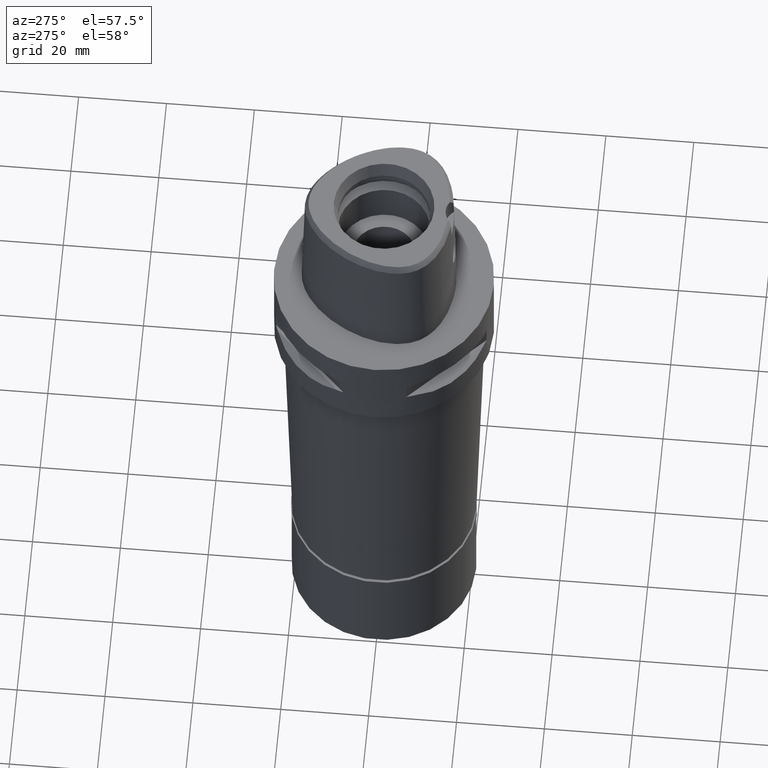
[diagram: clean part render]
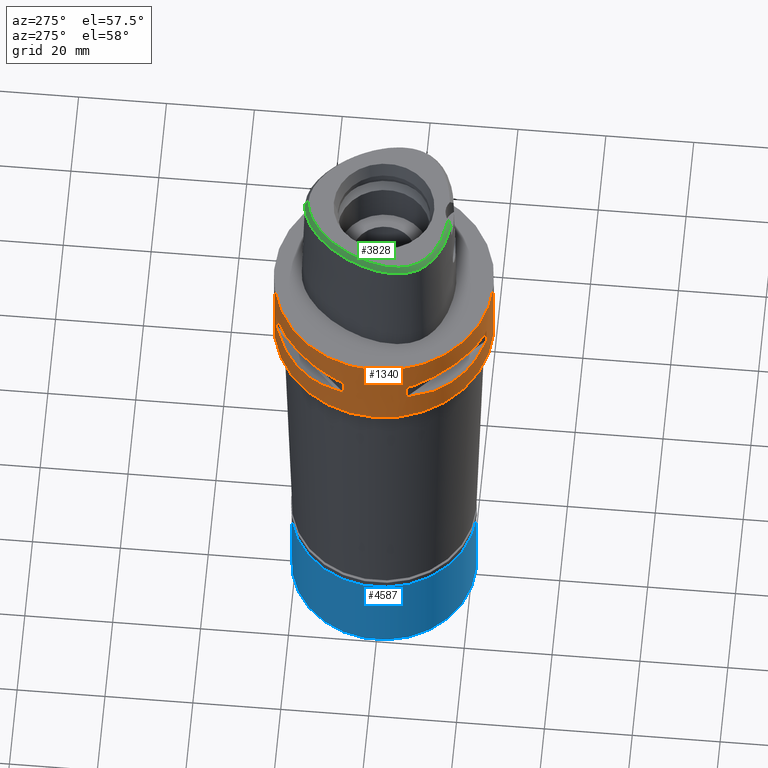
[diagram: same view with three faces highlighted in distinct colors, each labeled with its STEP entity id]
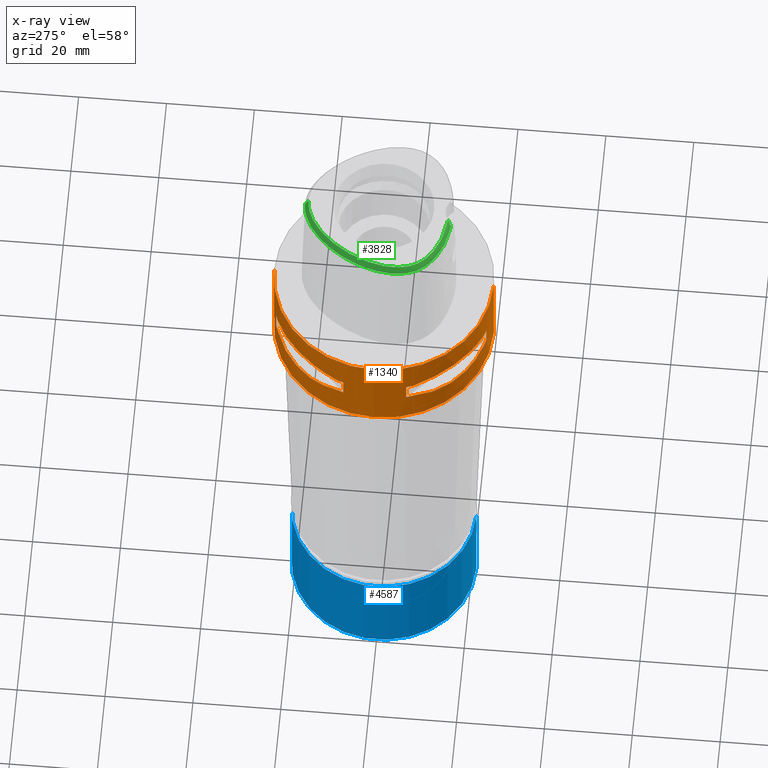
[diagram: x-ray of the same camera — body ghosted, the three highlighted faces saturated]
A machine part, auxiliary view with three faces highlighted in distinct colors.
The next image is the same camera in x-ray (body ghosted, the three faces saturated) — at least one of them is partly hidden behind the body in this view.
Their STEP definitions:

[orange] entity #1340 — the highlighted cylindrical surface (partial cylindrical patch) has radius 25 mm, axis along (0, 0, -1).
#78 = CARTESIAN_POINT ( 'NONE',  ( -10.78455809744490068, 22.58788056562654489, -12.56798337782910480 ) ) ;
#83 = CARTESIAN_POINT ( 'NONE',  ( -14.22535762327708397, -20.56020460723788901, -13.14488865845220289 ) ) ;
#107 = CARTESIAN_POINT ( 'NONE',  ( -8.646484890751999330, -23.45715880140000209, -12.05000000000000071 ) ) ;
#110 = VECTOR ( 'NONE', #177, 1000.000000000000000 ) ;
#161 = CARTESIAN_POINT ( 'NONE',  ( 0.0000000000000000000, 1.293533181598999990E-14, -12.05000000000000071 ) ) ;
#177 = DIRECTION ( 'NONE',  ( 0.0000000000000000000, 0.0000000000000000000, -1.000000000000000000 ) ) ;
#203 = EDGE_LOOP ( 'NONE', ( #4661, #1486, #4260, #4144 ) ) ;
#211 = ORIENTED_EDGE ( 'NONE', *, *, #624, .T. ) ;
#254 = VERTEX_POINT ( 'NONE', #3450 ) ;
#269 = VECTOR ( 'NONE', #312, 1000.000000000000000 ) ;
#312 = DIRECTION ( 'NONE',  ( 0.0000000000000000000, 0.0000000000000000000, 1.000000000000000000 ) ) ;
#317 = CARTESIAN_POINT ( 'NONE',  ( -15.02693924547097204, 20.06077645875068072, -6.733132781305681824 ) ) ;
#340 = CIRCLE ( 'NONE', #3094, 25.00000000000001066 ) ;
#343 = EDGE_CURVE ( 'NONE', #3023, #3370, #4446, .T. ) ;
#352 = CARTESIAN_POINT ( 'NONE',  ( 0.0000000000000000000, 1.293533181598999990E-14, -7.950000000000000178 ) ) ;
#413 = DIRECTION ( 'NONE',  ( 0.0000000000000000000, 0.0000000000000000000, -1.000000000000000000 ) ) ;
#421 = CARTESIAN_POINT ( 'NONE',  ( -20.92801700160071476, 13.67544437571354088, -13.07054629644098043 ) ) ;
#428 = CARTESIAN_POINT ( 'NONE',  ( -20.02826730454556170, -15.06560254766883666, -13.27075471794798744 ) ) ;
#452 = CARTESIAN_POINT ( 'NONE',  ( -16.07509500017260251, -19.18226349640280048, -13.33749867751863327 ) ) ;
#478 = CARTESIAN_POINT ( 'NONE',  ( -23.95277699797999915, 7.159921374230999724, -12.05000000000000071 ) ) ;
#486 = CARTESIAN_POINT ( 'NONE',  ( 0.0000000000000000000, 1.293533181598999990E-14, -12.05000000000000071 ) ) ;
#501 = CIRCLE ( 'NONE', #2624, 25.00000000000000000 ) ;
#608 = CIRCLE ( 'NONE', #3113, 24.99999999999999645 ) ;
#624 = EDGE_CURVE ( 'NONE', #1397, #4736, #1175, .T. ) ;
#629 = VERTEX_POINT ( 'NONE', #2608 ) ;
#639 = CARTESIAN_POINT ( 'NONE',  ( -22.00754773658078634, -11.99631184311072651, -7.175632472892016445 ) ) ;
#666 = CARTESIAN_POINT ( 'NONE',  ( -20.06077645874710669, -15.02693924547572557, -6.733132781305682713 ) ) ;
#692 = CARTESIAN_POINT ( 'NONE',  ( -16.42437865151180887, 18.93096040781558642, -6.622505547253058289 ) ) ;
#700 = CIRCLE ( 'NONE', #713, 24.99999999999999645 ) ;
#713 = AXIS2_PLACEMENT_3D ( 'NONE', #1029, #4030, #4288 ) ;
#726 = DIRECTION ( 'NONE',  ( 0.0000000000000000000, 0.0000000000000000000, 1.000000000000000000 ) ) ;
#772 = CARTESIAN_POINT ( 'NONE',  ( -7.159921374230999724, -23.95277699797999915, -12.05000000000000071 ) ) ;
#787 = CARTESIAN_POINT ( 'NONE',  ( -20.56020460721916265, 14.22535762329778564, -13.14488865845300047 ) ) ;
#794 = CARTESIAN_POINT ( 'NONE',  ( -22.58788056562029922, -10.78455809745187111, -12.56798337782941744 ) ) ;
#806 = AXIS2_PLACEMENT_3D ( 'NONE', #352, #726, #2237 ) ;
#827 = EDGE_CURVE ( 'NONE', #4316, #3151, #501, .T. ) ;
#838 = B_SPLINE_CURVE_WITH_KNOTS ( 'NONE', 3,
 ( #4594, #3435, #794, #2668, #3899, #3092, #4542, #1224, #1172, #3804, #428, #1580, #2327, #452, #3461, #83, #2717, #4209, #843, #2352, #3852, #1985, #3483, #107 ),
 .UNSPECIFIED., .F., .F.,
 ( 4, 1, 1, 1, 1, 1, 2, 2, 2, 1, 1, 1, 1, 1, 2, 2, 4 ),
 ( 0.0000000000000000000, 0.1249999999999980294, 0.1874999999999968636, 0.2187499999999962530, 0.2343749999999959754, 0.2421874999999957812, 0.2460937499999955869, 0.2499999999999953926, 0.5000000000000005551, 0.6250000000000031086, 0.6875000000000044409, 0.7187500000000051070, 0.7343750000000054401, 0.7421875000000055511, 0.7460937500000055511, 0.7500000000000055511, 1.000000000000000000 ),
 .UNSPECIFIED. ) ;
#843 = CARTESIAN_POINT ( 'NONE',  ( -13.67544437571023153, -20.92801700160370970, -13.07054629644085786 ) ) ;
#917 = VERTEX_POINT ( 'NONE', #3227 ) ;
#941 = EDGE_CURVE ( 'NONE', #254, #3370, #3717, .T. ) ;
#951 = CARTESIAN_POINT ( 'NONE',  ( -11.99636231264437747, -22.00752022556847720, -7.175618606703325852 ) ) ;
#983 = CARTESIAN_POINT ( 'NONE',  ( 0.0000000000000000000, 1.293533181598999990E-14, -7.950000000000000178 ) ) ;
#1003 = CARTESIAN_POINT ( 'NONE',  ( -15.02698525050127465, -20.06074199764947963, -6.733118915116992120 ) ) ;
#1029 = CARTESIAN_POINT ( 'NONE',  ( 0.0000000000000000000, 1.293533181598999990E-14, -12.05000000000000071 ) ) ;
#1040 = VECTOR ( 'NONE', #413, 1000.000000000000000 ) ;
#1057 = FACE_BOUND ( 'NONE', #4029, .T. ) ;
#1075 = ORIENTED_EDGE ( 'NONE', *, *, #2605, .T. ) ;
#1127 = VERTEX_POINT ( 'NONE', #3324 ) ;
#1134 = CARTESIAN_POINT ( 'NONE',  ( 0.0000000000000000000, 1.293533181598999990E-14, 0.0000000000000000000 ) ) ;
#1154 = CARTESIAN_POINT ( 'NONE',  ( -23.45715880140000209, 8.646484890751999330, -7.949999999998999201 ) ) ;
#1172 = CARTESIAN_POINT ( 'NONE',  ( -21.01958685664054372, -13.53433973752400377, -13.05032380590162511 ) ) ;
#1175 = B_SPLINE_CURVE_WITH_KNOTS ( 'NONE', 3,
 ( #1564, #2651, #4429, #317, #692, #2207, #1840, #3327, #4500, #1154 ),
 .UNSPECIFIED., .F., .F.,
 ( 4, 2, 2, 2, 4 ),
 ( 0.0000000000000000000, 0.2500000000000000000, 0.5000000000000000000, 0.7500000000000000000, 1.000000000000000000 ),
 .UNSPECIFIED. ) ;
#1192 = CARTESIAN_POINT ( 'NONE',  ( -22.81626994450270374, 10.38516041961251979, -12.49816953212508963 ) ) ;
#1220 = AXIS2_PLACEMENT_3D ( 'NONE', #486, #1995, #1259 ) ;
#1224 = CARTESIAN_POINT ( 'NONE',  ( -21.05082155772163333, -13.48572973711064193, -13.04323036965292637 ) ) ;
#1247 = DIRECTION ( 'NONE',  ( 0.0000000000000000000, 0.0000000000000000000, 1.000000000000000000 ) ) ;
#1259 = DIRECTION ( 'NONE',  ( -0.9382863520558295534, -0.3458593956303108730, 0.0000000000000000000 ) ) ;
#1279 = DIRECTION ( 'NONE',  ( 0.0000000000000000000, 0.0000000000000000000, -1.000000000000000000 ) ) ;
#1340 = ADVANCED_FACE ( 'NONE', ( #1891, #1057, #2219 ), #1433, .T. ) ;
#1354 = ORIENTED_EDGE ( 'NONE', *, *, #343, .T. ) ;
#1397 = VERTEX_POINT ( 'NONE', #3319 ) ;
#1427 = VERTEX_POINT ( 'NONE', #3292 ) ;
#1433 = CYLINDRICAL_SURFACE ( 'NONE', #1916, 25.00000000000000000 ) ;
#1441 = EDGE_LOOP ( 'NONE', ( #3624, #3167, #2147, #1980, #1354, #3394, #3219, #4205 ) ) ;
#1461 = VERTEX_POINT ( 'NONE', #2168 ) ;
#1482 = B_SPLINE_CURVE_WITH_KNOTS ( 'NONE', 3,
 ( #3247, #4034, #639, #666, #2173, #4746, #1003, #951, #2455, #1733 ),
 .UNSPECIFIED., .F., .F.,
 ( 4, 2, 2, 2, 4 ),
 ( 0.0000000000000000000, 0.2499999999999998335, 0.4999999999999996669, 0.7499999999999997780, 1.000000000000000000 ),
 .UNSPECIFIED. ) ;
#1486 = ORIENTED_EDGE ( 'NONE', *, *, #3958, .F. ) ;
#1505 = CARTESIAN_POINT ( 'NONE',  ( -12.20403021317230241, 21.82791133048917587, -12.83722430138601212 ) ) ;
#1539 = CIRCLE ( 'NONE', #806, 25.00000000000001066 ) ;
#1540 = B_SPLINE_CURVE_WITH_KNOTS ( 'NONE', 3,
 ( #1575, #3430, #78, #1505, #4134, #4490, #2281, #1909, #3796, #1553, #3063, #3036, #4536, #2665, #4156, #787, #1954, #2687, #421, #1601, #4180, #4562, #1192, #4229 ),
 .UNSPECIFIED., .F., .F.,
 ( 4, 1, 1, 1, 1, 1, 2, 2, 2, 1, 1, 1, 1, 1, 2, 2, 4 ),
 ( 0.0000000000000000000, 0.1249999999999998612, 0.1874999999999998890, 0.2187499999999998057, 0.2343749999999998057, 0.2421875000000000000, 0.2460937500000001110, 0.2500000000000002220, 0.5000000000000009992, 0.6250000000000014433, 0.6875000000000015543, 0.7187500000000016653, 0.7343750000000015543, 0.7421875000000013323, 0.7460937500000013323, 0.7500000000000012212, 1.000000000000000000 ),
 .UNSPECIFIED. ) ;
#1553 = CARTESIAN_POINT ( 'NONE',  ( -13.55971422200900811, 21.00321793043610441, -13.05400030967432023 ) ) ;
#1557 = DIRECTION ( 'NONE',  ( 0.0000000000000000000, 0.0000000000000000000, 1.000000000000000000 ) ) ;
#1561 = CARTESIAN_POINT ( 'NONE',  ( -8.646484890756999775, 23.45715880140000209, -12.05000000000000071 ) ) ;
#1564 = CARTESIAN_POINT ( 'NONE',  ( -8.646484890751999330, 23.45715880140000209, -7.949999999998999201 ) ) ;
#1575 = CARTESIAN_POINT ( 'NONE',  ( -8.646484890756999775, 23.45715880140000209, -12.05000000000000071 ) ) ;
#1580 = CARTESIAN_POINT ( 'NONE',  ( -18.92421359266165126, -16.43106916201666934, -13.37747608848409264 ) ) ;
#1595 = AXIS2_PLACEMENT_3D ( 'NONE', #1134, #1279, #4244 ) ;
#1601 = CARTESIAN_POINT ( 'NONE',  ( -20.95817024473769052, 13.62920640916783910, -13.06397973560678594 ) ) ;
#1628 = LINE ( 'NONE', #2899, #110 ) ;
#1631 = CARTESIAN_POINT ( 'NONE',  ( -8.646484890751999330, -23.45715880140000209, -7.949999999998999201 ) ) ;
#1681 = CARTESIAN_POINT ( 'NONE',  ( 0.0000000000000000000, 1.293533181598999990E-14, -7.950000000000000178 ) ) ;
#1685 = EDGE_CURVE ( 'NONE', #3042, #917, #4043, .T. ) ;
#1686 = EDGE_CURVE ( 'NONE', #4736, #629, #340, .T. ) ;
#1733 = CARTESIAN_POINT ( 'NONE',  ( -8.646484890751999330, -23.45715880140000209, -7.949999999998999201 ) ) ;
#1755 = CIRCLE ( 'NONE', #1595, 25.00000000000000000 ) ;
#1759 = DIRECTION ( 'NONE',  ( 0.0000000000000000000, 0.0000000000000000000, 1.000000000000000000 ) ) ;
#1771 = VERTEX_POINT ( 'NONE', #3756 ) ;
#1792 = CARTESIAN_POINT ( 'NONE',  ( 0.0000000000000000000, -25.00000000000000000, -20.00000000000000000 ) ) ;
#1840 = CARTESIAN_POINT ( 'NONE',  ( -20.06074199764948673, 15.02698525050129064, -6.733118915116992120 ) ) ;
#1890 = EDGE_CURVE ( 'NONE', #4723, #4393, #1539, .T. ) ;
#1891 = FACE_OUTER_BOUND ( 'NONE', #203, .T. ) ;
#1909 = CARTESIAN_POINT ( 'NONE',  ( -13.48572973711087464, 21.05082155772280572, -13.04323036965348237 ) ) ;
#1916 = AXIS2_PLACEMENT_3D ( 'NONE', #4867, #3734, #3014 ) ;
#1954 = CARTESIAN_POINT ( 'NONE',  ( -20.77616787492826944, 13.90573822668830140, -13.10257122103331184 ) ) ;
#1971 = EDGE_CURVE ( 'NONE', #3042, #3325, #1540, .T. ) ;
#1980 = ORIENTED_EDGE ( 'NONE', *, *, #2682, .F. ) ;
#1985 = CARTESIAN_POINT ( 'NONE',  ( -12.03062603421342125, -21.99328990740118428, -12.83394786307044555 ) ) ;
#1995 = DIRECTION ( 'NONE',  ( 0.0000000000000000000, 0.0000000000000000000, -1.000000000000000000 ) ) ;
#2010 = DIRECTION ( 'NONE',  ( -0.2863968549694120291, 0.9581110799190402094, 0.0000000000000000000 ) ) ;
#2069 = CARTESIAN_POINT ( 'NONE',  ( 0.0000000000000000000, 25.00000000000000000, -20.00000000000000000 ) ) ;
#2145 = CARTESIAN_POINT ( 'NONE',  ( -23.95277699797999915, 7.159921374235000080, -12.05000000000000071 ) ) ;
#2146 = DIRECTION ( 'NONE',  ( 0.0000000000000000000, 1.000000000000000000, 0.0000000000000000000 ) ) ;
#2147 = ORIENTED_EDGE ( 'NONE', *, *, #2819, .T. ) ;
#2168 = CARTESIAN_POINT ( 'NONE',  ( 0.0000000000000000000, 25.00000000000000000, 0.0000000000000000000 ) ) ;
#2173 = CARTESIAN_POINT ( 'NONE',  ( -18.93096040781556511, -16.42437865151180176, -6.622505547253058289 ) ) ;
#2203 = LINE ( 'NONE', #2932, #2727 ) ;
#2207 = CARTESIAN_POINT ( 'NONE',  ( -18.93096040781557221, 16.42437865151181953, -6.622496303226939496 ) ) ;
#2219 = FACE_BOUND ( 'NONE', #1441, .T. ) ;
#2225 = CARTESIAN_POINT ( 'NONE',  ( -23.95277699797999915, -7.159921374230999724, -7.950000000000000178 ) ) ;
#2237 = DIRECTION ( 'NONE',  ( -0.3458593956303108730, -0.9382863520558295534, 0.0000000000000000000 ) ) ;
#2281 = CARTESIAN_POINT ( 'NONE',  ( -13.41274673326356393, 21.09754014382244236, -13.03250796600796413 ) ) ;
#2290 = CARTESIAN_POINT ( 'NONE',  ( 0.0000000000000000000, -25.00000000000000000, 0.0000000000000000000 ) ) ;
#2327 = CARTESIAN_POINT ( 'NONE',  ( -17.05439749816580886, -18.30096971348830692, -13.37751056790007809 ) ) ;
#2329 = EDGE_CURVE ( 'NONE', #1771, #4723, #1482, .T. ) ;
#2347 = VERTEX_POINT ( 'NONE', #2145 ) ;
#2352 = CARTESIAN_POINT ( 'NONE',  ( -13.62920640916616577, -20.95817024473919687, -13.06397973560672554 ) ) ;
#2403 = EDGE_CURVE ( 'NONE', #1427, #4393, #4099, .T. ) ;
#2427 = DIRECTION ( 'NONE',  ( -0.3458593956303108730, 0.9382863520558295534, 0.0000000000000000000 ) ) ;
#2430 = CARTESIAN_POINT ( 'NONE',  ( 0.0000000000000000000, 1.293533181598999990E-14, -20.00000000000000000 ) ) ;
#2444 = ORIENTED_EDGE ( 'NONE', *, *, #2661, .F. ) ;
#2455 = CARTESIAN_POINT ( 'NONE',  ( -10.36318218122985790, -22.82437128822188299, -7.507495686399604296 ) ) ;
#2471 = VECTOR ( 'NONE', #1557, 1000.000000000000000 ) ;
#2605 = EDGE_CURVE ( 'NONE', #1127, #1397, #2700, .T. ) ;
#2608 = CARTESIAN_POINT ( 'NONE',  ( -23.95277699797999915, 7.159921374230999724, -7.950000000000000178 ) ) ;
#2624 = AXIS2_PLACEMENT_3D ( 'NONE', #2430, #1759, #2146 ) ;
#2651 = CARTESIAN_POINT ( 'NONE',  ( -10.36314631860243018, 22.82438450745570435, -7.507504930525399800 ) ) ;
#2661 = EDGE_CURVE ( 'NONE', #2347, #629, #4261, .T. ) ;
#2665 = CARTESIAN_POINT ( 'NONE',  ( -19.18226349636000450, 16.07509500021993532, -13.33749867752047003 ) ) ;
#2668 = CARTESIAN_POINT ( 'NONE',  ( -21.82791133048418786, -12.20403021317722292, -12.83722430138600323 ) ) ;
#2682 = EDGE_CURVE ( 'NONE', #3023, #3672, #838, .T. ) ;
#2685 = EDGE_CURVE ( 'NONE', #1461, #4316, #1628, .T. ) ;
#2687 = CARTESIAN_POINT ( 'NONE',  ( -20.88268233905774096, 13.74471461762043489, -13.08031795579756462 ) ) ;
#2695 = AXIS2_PLACEMENT_3D ( 'NONE', #161, #4695, #2427 ) ;
#2700 = CIRCLE ( 'NONE', #3733, 24.99999999999999645 ) ;
#2717 = CARTESIAN_POINT ( 'NONE',  ( -13.90573822667720982, -20.77616787493829875, -13.10257122103289262 ) ) ;
#2726 = CIRCLE ( 'NONE', #4131, 24.99999999999999645 ) ;
#2727 = VECTOR ( 'NONE', #4060, 1000.000000000000000 ) ;
#2819 = EDGE_CURVE ( 'NONE', #1427, #3672, #700, .T. ) ;
#2899 = CARTESIAN_POINT ( 'NONE',  ( 0.0000000000000000000, 25.00000000000000000, 0.0000000000000000000 ) ) ;
#2922 = ORIENTED_EDGE ( 'NONE', *, *, #1686, .T. ) ;
#2932 = CARTESIAN_POINT ( 'NONE',  ( -7.159921374230999724, 23.95277699797999915, -7.950000000000000178 ) ) ;
#2977 = DIRECTION ( 'NONE',  ( 0.0000000000000000000, 0.0000000000000000000, -1.000000000000000000 ) ) ;
#3014 = DIRECTION ( 'NONE',  ( 0.0000000000000000000, -1.000000000000000000, 0.0000000000000000000 ) ) ;
#3023 = VERTEX_POINT ( 'NONE', #3096 ) ;
#3036 = CARTESIAN_POINT ( 'NONE',  ( -16.43106916206559021, 18.92421359260760028, -13.37747608848198588 ) ) ;
#3042 = VERTEX_POINT ( 'NONE', #1561 ) ;
#3063 = CARTESIAN_POINT ( 'NONE',  ( -15.06560254765459739, 20.02826730455512561, -13.27075471794606543 ) ) ;
#3092 = CARTESIAN_POINT ( 'NONE',  ( -21.20561591939681989, -13.24197703503267753, -13.00691327926098140 ) ) ;
#3094 = AXIS2_PLACEMENT_3D ( 'NONE', #1681, #3225, #3930 ) ;
#3096 = CARTESIAN_POINT ( 'NONE',  ( -23.45715880140000209, -8.646484890756999775, -12.05000000000000071 ) ) ;
#3113 = AXIS2_PLACEMENT_3D ( 'NONE', #983, #3276, #4749 ) ;
#3151 = VERTEX_POINT ( 'NONE', #1792 ) ;
#3167 = ORIENTED_EDGE ( 'NONE', *, *, #2403, .F. ) ;
#3219 = ORIENTED_EDGE ( 'NONE', *, *, #4152, .T. ) ;
#3225 = DIRECTION ( 'NONE',  ( 0.0000000000000000000, 0.0000000000000000000, 1.000000000000000000 ) ) ;
#3227 = CARTESIAN_POINT ( 'NONE',  ( -7.159921374230999724, 23.95277699797999915, -12.05000000000000071 ) ) ;
#3247 = CARTESIAN_POINT ( 'NONE',  ( -23.45715880140000209, -8.646484890751999330, -7.949999999998999201 ) ) ;
#3276 = DIRECTION ( 'NONE',  ( 0.0000000000000000000, 0.0000000000000000000, 1.000000000000000000 ) ) ;
#3292 = CARTESIAN_POINT ( 'NONE',  ( -7.159921374235000080, -23.95277699797999915, -12.05000000000000071 ) ) ;
#3301 = CARTESIAN_POINT ( 'NONE',  ( -7.159921374230999724, -23.95277699797999915, -7.950000000000000178 ) ) ;
#3319 = CARTESIAN_POINT ( 'NONE',  ( -8.646484890751999330, 23.45715880140000209, -7.949999999998999201 ) ) ;
#3324 = CARTESIAN_POINT ( 'NONE',  ( -7.159921374235000080, 23.95277699797999915, -7.950000000000000178 ) ) ;
#3325 = VERTEX_POINT ( 'NONE', #4502 ) ;
#3327 = CARTESIAN_POINT ( 'NONE',  ( -22.00752022556850207, 11.99636231264438813, -7.175618606703327629 ) ) ;
#3366 = ORIENTED_EDGE ( 'NONE', *, *, #1971, .F. ) ;
#3370 = VERTEX_POINT ( 'NONE', #4529 ) ;
#3394 = ORIENTED_EDGE ( 'NONE', *, *, #941, .F. ) ;
#3430 = CARTESIAN_POINT ( 'NONE',  ( -9.515641234293386930, 23.13678124605501196, -12.27403800212607266 ) ) ;
#3435 = CARTESIAN_POINT ( 'NONE',  ( -23.13678124605149833, -9.515641234297431694, -12.27403800212630891 ) ) ;
#3450 = CARTESIAN_POINT ( 'NONE',  ( -23.95277699797999915, -7.159921374235000080, -7.950000000000000178 ) ) ;
#3461 = CARTESIAN_POINT ( 'NONE',  ( -14.85488513037629943, -20.11654071403241417, -13.22076716108376360 ) ) ;
#3483 = CARTESIAN_POINT ( 'NONE',  ( -10.38516041956038016, -22.81626994452193458, -12.49816953211165860 ) ) ;
#3624 = ORIENTED_EDGE ( 'NONE', *, *, #1890, .T. ) ;
#3657 = ORIENTED_EDGE ( 'NONE', *, *, #4404, .F. ) ;
#3672 = VERTEX_POINT ( 'NONE', #3823 ) ;
#3692 = CARTESIAN_POINT ( 'NONE',  ( 0.0000000000000000000, 1.293533181598999990E-14, -12.05000000000000071 ) ) ;
#3705 = VERTEX_POINT ( 'NONE', #4002 ) ;
#3717 = LINE ( 'NONE', #2225, #4596 ) ;
#3733 = AXIS2_PLACEMENT_3D ( 'NONE', #4164, #1247, #2010 ) ;
#3734 = DIRECTION ( 'NONE',  ( 0.0000000000000000000, 0.0000000000000000000, -1.000000000000000000 ) ) ;
#3756 = CARTESIAN_POINT ( 'NONE',  ( -23.45715880140000209, -8.646484890751999330, -7.949999999998999201 ) ) ;
#3796 = CARTESIAN_POINT ( 'NONE',  ( -13.53433973752450470, 21.01958685664151361, -13.05032380590220775 ) ) ;
#3804 = CARTESIAN_POINT ( 'NONE',  ( -21.00321793043546847, -13.55971422200801157, -13.05400030967367364 ) ) ;
#3823 = CARTESIAN_POINT ( 'NONE',  ( -8.646484890751999330, -23.45715880140000209, -12.05000000000000071 ) ) ;
#3852 = CARTESIAN_POINT ( 'NONE',  ( -13.60713573003076249, -20.97251445226584110, -13.06082541678113174 ) ) ;
#3899 = CARTESIAN_POINT ( 'NONE',  ( -21.41803043592453548, -12.89853354821786446, -12.95342092614003171 ) ) ;
#3930 = DIRECTION ( 'NONE',  ( -0.9382863520558295534, 0.3458593956303108730, 0.0000000000000000000 ) ) ;
#3958 = EDGE_CURVE ( 'NONE', #3705, #3151, #4066, .T. ) ;
#3997 = EDGE_CURVE ( 'NONE', #3705, #1461, #1755, .T. ) ;
#4002 = CARTESIAN_POINT ( 'NONE',  ( 0.0000000000000000000, -25.00000000000000000, 0.0000000000000000000 ) ) ;
#4029 = EDGE_LOOP ( 'NONE', ( #2922, #2444, #4715, #3366, #4783, #3657, #1075, #211 ) ) ;
#4030 = DIRECTION ( 'NONE',  ( 0.0000000000000000000, 0.0000000000000000000, -1.000000000000000000 ) ) ;
#4034 = CARTESIAN_POINT ( 'NONE',  ( -22.82438450745432235, -10.36314631860613389, -7.507504930525400688 ) ) ;
#4043 = CIRCLE ( 'NONE', #2695, 25.00000000000001066 ) ;
#4060 = DIRECTION ( 'NONE',  ( 0.0000000000000000000, 0.0000000000000000000, -1.000000000000000000 ) ) ;
#4066 = LINE ( 'NONE', #2290, #1040 ) ;
#4099 = LINE ( 'NONE', #772, #269 ) ;
#4131 = AXIS2_PLACEMENT_3D ( 'NONE', #3692, #4825, #4474 ) ;
#4134 = CARTESIAN_POINT ( 'NONE',  ( -12.89853354821533493, 21.41803043592779687, -12.95342092614030882 ) ) ;
#4144 = ORIENTED_EDGE ( 'NONE', *, *, #2685, .T. ) ;
#4152 = EDGE_CURVE ( 'NONE', #254, #1771, #608, .T. ) ;
#4156 = CARTESIAN_POINT ( 'NONE',  ( -20.11654071400031896, 14.85488513041178926, -13.22076716108514383 ) ) ;
#4164 = CARTESIAN_POINT ( 'NONE',  ( 0.0000000000000000000, 1.293533181598999990E-14, -7.950000000000000178 ) ) ;
#4180 = CARTESIAN_POINT ( 'NONE',  ( -20.97251445226615019, 13.60713573002994004, -13.06082541678091324 ) ) ;
#4205 = ORIENTED_EDGE ( 'NONE', *, *, #2329, .T. ) ;
#4209 = CARTESIAN_POINT ( 'NONE',  ( -13.74471461761470792, -20.88268233906292437, -13.08031795579734791 ) ) ;
#4213 = CARTESIAN_POINT ( 'NONE',  ( -23.45715880140000209, 8.646484890751999330, -7.949999999998999201 ) ) ;
#4229 = CARTESIAN_POINT ( 'NONE',  ( -23.45715880140000209, 8.646484890751999330, -12.05000000000000071 ) ) ;
#4244 = DIRECTION ( 'NONE',  ( 0.0000000000000000000, -1.000000000000000000, 0.0000000000000000000 ) ) ;
#4260 = ORIENTED_EDGE ( 'NONE', *, *, #3997, .T. ) ;
#4261 = LINE ( 'NONE', #478, #2471 ) ;
#4288 = DIRECTION ( 'NONE',  ( -0.2863968549694120291, -0.9581110799190402094, 0.0000000000000000000 ) ) ;
#4316 = VERTEX_POINT ( 'NONE', #2069 ) ;
#4393 = VERTEX_POINT ( 'NONE', #3301 ) ;
#4404 = EDGE_CURVE ( 'NONE', #1127, #917, #2203, .T. ) ;
#4429 = CARTESIAN_POINT ( 'NONE',  ( -11.99631184310551291, 22.00754773658364272, -7.175632472892015556 ) ) ;
#4446 = CIRCLE ( 'NONE', #1220, 25.00000000000001066 ) ;
#4474 = DIRECTION ( 'NONE',  ( -0.9581110799190402094, 0.2863968549694120291, 0.0000000000000000000 ) ) ;
#4490 = CARTESIAN_POINT ( 'NONE',  ( -13.24197703503168100, 21.20561591939891599, -13.00691327926142193 ) ) ;
#4500 = CARTESIAN_POINT ( 'NONE',  ( -22.82437128822189010, 10.36318218122987744, -7.507495686399606960 ) ) ;
#4502 = CARTESIAN_POINT ( 'NONE',  ( -23.45715880140000209, 8.646484890751999330, -12.05000000000000071 ) ) ;
#4529 = CARTESIAN_POINT ( 'NONE',  ( -23.95277699797999915, -7.159921374230999724, -12.05000000000000071 ) ) ;
#4536 = CARTESIAN_POINT ( 'NONE',  ( -18.30096971346384294, 17.05439749819285566, -13.37751056790112258 ) ) ;
#4542 = CARTESIAN_POINT ( 'NONE',  ( -21.09754014382098930, -13.41274673326371136, -13.03250796600744721 ) ) ;
#4562 = CARTESIAN_POINT ( 'NONE',  ( -21.99328990738197476, 12.03062603426555022, -12.83394786308387125 ) ) ;
#4594 = CARTESIAN_POINT ( 'NONE',  ( -23.45715880140000209, -8.646484890756999775, -12.05000000000000071 ) ) ;
#4596 = VECTOR ( 'NONE', #2977, 1000.000000000000000 ) ;
#4661 = ORIENTED_EDGE ( 'NONE', *, *, #827, .T. ) ;
#4695 = DIRECTION ( 'NONE',  ( 0.0000000000000000000, 0.0000000000000000000, -1.000000000000000000 ) ) ;
#4715 = ORIENTED_EDGE ( 'NONE', *, *, #4865, .T. ) ;
#4723 = VERTEX_POINT ( 'NONE', #1631 ) ;
#4736 = VERTEX_POINT ( 'NONE', #4213 ) ;
#4746 = CARTESIAN_POINT ( 'NONE',  ( -16.42437865151179821, -18.93096040781555445, -6.622496303226939496 ) ) ;
#4749 = DIRECTION ( 'NONE',  ( -0.9581110799190402094, -0.2863968549694120291, 0.0000000000000000000 ) ) ;
#4783 = ORIENTED_EDGE ( 'NONE', *, *, #1685, .T. ) ;
#4825 = DIRECTION ( 'NONE',  ( 0.0000000000000000000, 0.0000000000000000000, -1.000000000000000000 ) ) ;
#4865 = EDGE_CURVE ( 'NONE', #2347, #3325, #2726, .T. ) ;
#4867 = CARTESIAN_POINT ( 'NONE',  ( 0.0000000000000000000, 1.293533181598999990E-14, 5.625000000000000000 ) ) ;

[blue] entity #4587 — the highlighted cylindrical surface (partial cylindrical patch) has radius 21 mm, axis along (0, 0, -1).
#49 = CYLINDRICAL_SURFACE ( 'NONE', #999, 21.00000000000000000 ) ;
#239 = ORIENTED_EDGE ( 'NONE', *, *, #4246, .T. ) ;
#293 = DIRECTION ( 'NONE',  ( 0.0000000000000000000, 1.000000000000000000, 0.0000000000000000000 ) ) ;
#308 = ORIENTED_EDGE ( 'NONE', *, *, #3331, .F. ) ;
#540 = CARTESIAN_POINT ( 'NONE',  ( 0.0000000000000000000, 0.0000000000000000000, 0.0000000000000000000 ) ) ;
#637 = VERTEX_POINT ( 'NONE', #2983 ) ;
#659 = VERTEX_POINT ( 'NONE', #4084 ) ;
#690 = DIRECTION ( 'NONE',  ( 0.0000000000000000000, 0.0000000000000000000, 1.000000000000000000 ) ) ;
#999 = AXIS2_PLACEMENT_3D ( 'NONE', #540, #1189, #1976 ) ;
#1007 = LINE ( 'NONE', #3986, #1406 ) ;
#1114 = CARTESIAN_POINT ( 'NONE',  ( 0.0000000000000000000, -21.00000000000000000, -2.000000000000000000 ) ) ;
#1189 = DIRECTION ( 'NONE',  ( 0.0000000000000000000, 0.0000000000000000000, -1.000000000000000000 ) ) ;
#1239 = CIRCLE ( 'NONE', #1798, 21.00000000000000000 ) ;
#1371 = ORIENTED_EDGE ( 'NONE', *, *, #4412, .T. ) ;
#1406 = VECTOR ( 'NONE', #3625, 1000.000000000000000 ) ;
#1442 = CARTESIAN_POINT ( 'NONE',  ( 0.0000000000000000000, 0.0000000000000000000, -24.29999999999999716 ) ) ;
#1449 = EDGE_CURVE ( 'NONE', #659, #4028, #4667, .T. ) ;
#1579 = EDGE_LOOP ( 'NONE', ( #1371, #308, #3684, #239 ) ) ;
#1798 = AXIS2_PLACEMENT_3D ( 'NONE', #1442, #690, #293 ) ;
#1805 = CARTESIAN_POINT ( 'NONE',  ( 0.0000000000000000000, 0.0000000000000000000, -2.000000000000000000 ) ) ;
#1842 = LINE ( 'NONE', #1114, #2359 ) ;
#1871 = DIRECTION ( 'NONE',  ( 0.0000000000000000000, 0.0000000000000000000, -1.000000000000000000 ) ) ;
#1976 = DIRECTION ( 'NONE',  ( 0.0000000000000000000, -1.000000000000000000, 0.0000000000000000000 ) ) ;
#2359 = VECTOR ( 'NONE', #4122, 1000.000000000000000 ) ;
#2412 = FACE_OUTER_BOUND ( 'NONE', #1579, .T. ) ;
#2983 = CARTESIAN_POINT ( 'NONE',  ( 0.0000000000000000000, -21.00000000000000000, -24.29999999999999716 ) ) ;
#3141 = VERTEX_POINT ( 'NONE', #4409 ) ;
#3331 = EDGE_CURVE ( 'NONE', #659, #637, #1842, .T. ) ;
#3361 = DIRECTION ( 'NONE',  ( 0.0000000000000000000, -1.000000000000000000, 0.0000000000000000000 ) ) ;
#3625 = DIRECTION ( 'NONE',  ( 0.0000000000000000000, 0.0000000000000000000, -1.000000000000000000 ) ) ;
#3684 = ORIENTED_EDGE ( 'NONE', *, *, #1449, .T. ) ;
#3798 = AXIS2_PLACEMENT_3D ( 'NONE', #1805, #1871, #3361 ) ;
#3986 = CARTESIAN_POINT ( 'NONE',  ( 0.0000000000000000000, 21.00000000000000000, -2.000000000000000000 ) ) ;
#4028 = VERTEX_POINT ( 'NONE', #4653 ) ;
#4084 = CARTESIAN_POINT ( 'NONE',  ( 0.0000000000000000000, -21.00000000000000000, -2.000000000000000000 ) ) ;
#4122 = DIRECTION ( 'NONE',  ( 0.0000000000000000000, 0.0000000000000000000, -1.000000000000000000 ) ) ;
#4246 = EDGE_CURVE ( 'NONE', #4028, #3141, #1007, .T. ) ;
#4409 = CARTESIAN_POINT ( 'NONE',  ( 0.0000000000000000000, 21.00000000000000000, -24.29999999999999716 ) ) ;
#4412 = EDGE_CURVE ( 'NONE', #3141, #637, #1239, .T. ) ;
#4587 = ADVANCED_FACE ( 'NONE', ( #2412 ), #49, .T. ) ;
#4653 = CARTESIAN_POINT ( 'NONE',  ( 0.0000000000000000000, 21.00000000000000000, -2.000000000000000000 ) ) ;
#4667 = CIRCLE ( 'NONE', #3798, 21.00000000000000000 ) ;

[green] entity #3828 — the highlighted face is a freeform B-spline surface patch.
#2 = CARTESIAN_POINT ( 'NONE',  ( -13.90005132408000144, 6.909717275675999915, 28.95817053500000071 ) ) ;
#4 = B_SPLINE_CURVE_WITH_KNOTS ( 'NONE', 3,
 ( #3364, #4080, #3737, #1808 ),
 .UNSPECIFIED., .F., .F.,
 ( 4, 4 ),
 ( 0.0000000000000000000, 1.000000000000000000 ),
 .UNSPECIFIED. ) ;
#12 = ORIENTED_EDGE ( 'NONE', *, *, #1957, .F. ) ;
#13 = CARTESIAN_POINT ( 'NONE',  ( -7.523733151595357604, 15.26501052509366119, 28.52071192347000306 ) ) ;
#25 = CARTESIAN_POINT ( 'NONE',  ( -3.735136735539000163, 16.24953777112999731, 30.16679953831000205 ) ) ;
#28 = CARTESIAN_POINT ( 'NONE',  ( -16.04083576397834321, -1.656498942829390808, 29.99999999999242206 ) ) ;
#44 = CARTESIAN_POINT ( 'NONE',  ( -1.966269703032999860, -15.42628464151999879, 28.95817087532999778 ) ) ;
#50 = CARTESIAN_POINT ( 'NONE',  ( -9.846342960336000871, 12.60572696898000089, 28.95817145543000137 ) ) ;
#53 = CARTESIAN_POINT ( 'NONE',  ( -16.11283982316839669, -2.629907404753453193, 29.99999999999653610 ) ) ;
#74 = CARTESIAN_POINT ( 'NONE',  ( -16.28475011111000015, -1.630939427348000015, 29.56248481865000244 ) ) ;
#79 = CARTESIAN_POINT ( 'NONE',  ( -2.406542353497000075, -14.80491723099000012, 30.00000000000000000 ) ) ;
#97 = CARTESIAN_POINT ( 'NONE',  ( -16.24234014414999905, -5.188277677191999615, 29.56248498892999876 ) ) ;
#101 = CARTESIAN_POINT ( 'NONE',  ( -14.76322153899908862, -8.744676018998914557, 29.99999999999407052 ) ) ;
#122 = CARTESIAN_POINT ( 'NONE',  ( -16.91320365861999875, -5.283424923860000177, 28.35385571220000145 ) ) ;
#127 = CARTESIAN_POINT ( 'NONE',  ( -4.150496093830637889, -14.59917355180221854, 29.99999999999845457 ) ) ;
#149 = CARTESIAN_POINT ( 'NONE',  ( -15.82855120723999853, -7.952681632202000195, 28.95817053590000256 ) ) ;
#169 = CARTESIAN_POINT ( 'NONE',  ( -16.70939552529000238, -3.544885974161999798, 28.95817045445000204 ) ) ;
#197 = CARTESIAN_POINT ( 'NONE',  ( -6.625566703869999685, -13.96974551759999983, 30.16679923011000142 ) ) ;
#201 = CARTESIAN_POINT ( 'NONE',  ( -0.04533462822003999498, 18.08134284235000067, 28.35385590590999882 ) ) ;
#226 = CARTESIAN_POINT ( 'NONE',  ( -13.12536977620000123, -10.58885071630000141, 30.16679965019999798 ) ) ;
#231 = FACE_OUTER_BOUND ( 'NONE', #991, .T. ) ;
#250 = CARTESIAN_POINT ( 'NONE',  ( -13.84227014704999981, -10.35135338827000062, 29.56248494807000071 ) ) ;
#275 = CARTESIAN_POINT ( 'NONE',  ( -14.79477995882999863, -10.29138637464999917, 28.35385615919999935 ) ) ;
#297 = CARTESIAN_POINT ( 'NONE',  ( -3.771910472264813574, 16.33551310926213063, 29.99999999999259970 ) ) ;
#299 = CARTESIAN_POINT ( 'NONE',  ( -14.00815146176000070, -9.647645861035998749, 30.16679958200000300 ) ) ;
#303 = VERTEX_POINT ( 'NONE', #906 ) ;
#321 = CARTESIAN_POINT ( 'NONE',  ( -2.104718746210999747, -15.07686378197000110, 29.56248521503000148 ) ) ;
#326 = CARTESIAN_POINT ( 'NONE',  ( -9.193407148503000670, 13.74236801313000100, 28.35385826415999944 ) ) ;
#349 = CARTESIAN_POINT ( 'NONE',  ( -6.371691629196999607, 15.57968197459000059, 28.95817277174999660 ) ) ;
#373 = CARTESIAN_POINT ( 'NONE',  ( -13.60094634714000073, 6.750775041943000154, 29.56248506638999984 ) ) ;
#383 = CARTESIAN_POINT ( 'NONE',  ( -0.6295828121024792390, 17.98203011041733035, 28.52071192347000661 ) ) ;
#389 = CARTESIAN_POINT ( 'NONE',  ( -2.458010353042999974, -15.72748685322999940, 28.35385655331999999 ) ) ;
#394 = CARTESIAN_POINT ( 'NONE',  ( -7.214998561196999560, 14.98114716903000065, 28.95816990119999801 ) ) ;
#398 = CARTESIAN_POINT ( 'NONE',  ( -10.60021164902752844, -12.49731984708550847, 29.99999999999201705 ) ) ;
#418 = VECTOR ( 'NONE', #3777, 1000.000000000000000 ) ;
#419 = CARTESIAN_POINT ( 'NONE',  ( -10.20758545836000053, 11.18253969353999899, 30.16679968889999586 ) ) ;
#443 = CARTESIAN_POINT ( 'NONE',  ( -15.94784507528000006, -1.666243334560999934, 30.16679969220999880 ) ) ;
#447 = CARTESIAN_POINT ( 'NONE',  ( -15.99949242929488236, -5.153835065648327607, 29.99999999999828049 ) ) ;
#467 = CARTESIAN_POINT ( 'NONE',  ( -15.90690838691000053, -5.140704053858000222, 30.16679962729999787 ) ) ;
#473 = CARTESIAN_POINT ( 'NONE',  ( -11.92713521269471855, 9.060544494662995163, 29.99999999999666045 ) ) ;
#490 = CARTESIAN_POINT ( 'NONE',  ( -14.93251258505999957, 2.836939680104000328, 30.16679963463999670 ) ) ;
#515 = CARTESIAN_POINT ( 'NONE',  ( -16.27329443165000100, -6.693162852300999610, 28.95817023835000015 ) ) ;
#541 = CARTESIAN_POINT ( 'NONE',  ( -15.89421747839999810, 3.165136259766000215, 28.35385563978999812 ) ) ;
#566 = CARTESIAN_POINT ( 'NONE',  ( -10.87912383319999954, -13.01043579965000063, 28.95817024858000366 ) ) ;
#591 = CARTESIAN_POINT ( 'NONE',  ( -2.411640998825386184, 16.81591728051007806, 30.00000000000038014 ) ) ;
#594 = CARTESIAN_POINT ( 'NONE',  ( -5.632326236903999472, -15.25903260986000021, 28.35385674595000083 ) ) ;
#598 = CARTESIAN_POINT ( 'NONE',  ( -0.04216085550270999571, 17.40378894529000320, 29.56248504042000036 ) ) ;
#601 = CARTESIAN_POINT ( 'NONE',  ( -2.406542353497000075, -14.80491723099000012, 30.00000000000000000 ) ) ;
#623 = CARTESIAN_POINT ( 'NONE',  ( -15.19880863472999977, -9.760811934763999886, 28.35385550980999980 ) ) ;
#647 = CARTESIAN_POINT ( 'NONE',  ( -3.191903044270999690, -15.31536673295000028, 28.95817070369999868 ) ) ;
#672 = CARTESIAN_POINT ( 'NONE',  ( -4.498660734198481670, 15.99814720006012259, 29.99999999999656808 ) ) ;
#674 = CARTESIAN_POINT ( 'NONE',  ( -8.900929452879999815, -13.56454112084000130, 29.56248497176000356 ) ) ;
#688 = CARTESIAN_POINT ( 'NONE',  ( -1.893775706182604823, 17.84807082153677982, 28.52071192347000306 ) ) ;
#724 = CARTESIAN_POINT ( 'NONE',  ( -2.478007881247999755, 17.05205781552000133, 29.56248491656999988 ) ) ;
#744 = CARTESIAN_POINT ( 'NONE',  ( -8.959750083871000470, 13.49712769737999807, 28.95817196567999829 ) ) ;
#764 = CARTESIAN_POINT ( 'NONE',  ( -4.001599050478999331, 16.87251464717999738, 28.95817090634999857 ) ) ;
#768 = CARTESIAN_POINT ( 'NONE',  ( -14.08052509618162595, -9.706873108418140106, 29.99999999999250022 ) ) ;
#783 = CARTESIAN_POINT ( 'NONE',  ( -3.158905309551999885, 16.83697974214999959, 29.56248469305000270 ) ) ;
#804 = VERTEX_POINT ( 'NONE', #1356 ) ;
#807 = CARTESIAN_POINT ( 'NONE',  ( -10.98463010206000057, 11.83735348141000010, 28.35385510418999644 ) ) ;
#811 = CARTESIAN_POINT ( 'NONE',  ( -3.123276563984852761, -14.73562494724597194, 29.99999999999709388 ) ) ;
#833 = CARTESIAN_POINT ( 'NONE',  ( -15.99228126994000121, -4.369087899424999755, 30.16679953298000072 ) ) ;
#837 = ORIENTED_EDGE ( 'NONE', *, *, #4845, .F. ) ;
#859 = CARTESIAN_POINT ( 'NONE',  ( -16.35784535650000038, -2.618818356395000269, 29.56248495986000080 ) ) ;
#881 = CARTESIAN_POINT ( 'NONE',  ( -16.06706232963999881, -7.345235881097000430, 28.95817047046000070 ) ) ;
#906 = CARTESIAN_POINT ( 'NONE',  ( -6.301949014361000127E-11, 17.15328888647999861, 30.00000000000000000 ) ) ;
#909 = CARTESIAN_POINT ( 'NONE',  ( -15.57364918062000037, 3.055737399878999838, 28.95817030473999765 ) ) ;
#934 = CARTESIAN_POINT ( 'NONE',  ( -11.31391684471000048, -11.97135783080000060, 30.16679957208000218 ) ) ;
#962 = CARTESIAN_POINT ( 'NONE',  ( -6.893777055053999625, -14.94989638786000086, 28.35385963208999982 ) ) ;
#988 = CARTESIAN_POINT ( 'NONE',  ( -13.35648085489000003, -10.83658861559000108, 29.56248492887000268 ) ) ;
#991 = EDGE_LOOP ( 'NONE', ( #3803, #12, #1927, #837 ) ) ;
#1018 = CARTESIAN_POINT ( 'NONE',  ( -14.08934852857999864, -10.58318310158000131, 28.95817025326000049 ) ) ;
#1043 = CARTESIAN_POINT ( 'NONE',  ( -3.077178008231157946, 16.60571267457936173, 30.00000000000389022 ) ) ;
#1047 = CARTESIAN_POINT ( 'NONE',  ( -12.38577098194999948, -12.06744176772000010, 28.95817081922999847 ) ) ;
#1052 = CARTESIAN_POINT ( 'NONE',  ( 0.3391895730160999767, 18.07087355818000063, 28.35385565345000103 ) ) ;
#1069 = CARTESIAN_POINT ( 'NONE',  ( -1.160151454488677958, 17.07862209882879867, 29.99999999998848210 ) ) ;
#1101 = CARTESIAN_POINT ( 'NONE',  ( -12.13038086437999930, 9.197751382105000317, 29.56248530871999947 ) ) ;
#1109 = CARTESIAN_POINT ( 'NONE',  ( -4.422474562381477625, 17.08283562090033314, 28.52071192347000306 ) ) ;
#1119 = CARTESIAN_POINT ( 'NONE',  ( -1.753656521427999992, 16.88044025261000058, 30.16679960196000110 ) ) ;
#1125 = CARTESIAN_POINT ( 'NONE',  ( -15.07117015428044127, -9.793013966486117994, 28.52071192347000306 ) ) ;
#1138 = CARTESIAN_POINT ( 'NONE',  ( -2.661345492694000114, 17.70439283675999675, 28.35385543992000024 ) ) ;
#1163 = CARTESIAN_POINT ( 'NONE',  ( -7.859572925024000511, 14.03092767926000128, 29.56248511472999851 ) ) ;
#1169 = CARTESIAN_POINT ( 'NONE',  ( -15.87300767660444478, -5.872112237379130129, 30.00000000000089884 ) ) ;
#1190 = CARTESIAN_POINT ( 'NONE',  ( -10.09314825694000106, 12.83772174927999998, 28.35385745794000201 ) ) ;
#1193 = CARTESIAN_POINT ( 'NONE',  ( -6.047371482395112352, 15.09400374235134024, 29.99999999999838352 ) ) ;
#1212 = CARTESIAN_POINT ( 'NONE',  ( -16.37066721233999900, -3.539660331239999902, 29.56248503255999793 ) ) ;
#1218 = CARTESIAN_POINT ( 'NONE',  ( -15.04149970408600012, -8.249836848501004738, 30.00000000000179767 ) ) ;
#1238 = CARTESIAN_POINT ( 'NONE',  ( -14.84802781897000123, 5.765327973529000616, 28.35385664104000369 ) ) ;
#1243 = CARTESIAN_POINT ( 'NONE',  ( -12.04571048959431501, -11.59259605427347850, 30.00000000000283862 ) ) ;
#1261 = CARTESIAN_POINT ( 'NONE',  ( -15.42804940671999958, -7.119735391944999492, 30.16679960809999983 ) ) ;
#1284 = CARTESIAN_POINT ( 'NONE',  ( -16.59047028299999837, 0.6900979933372000108, 28.35385964961000127 ) ) ;
#1311 = CARTESIAN_POINT ( 'NONE',  ( -16.28544657540999907, 1.905088797693999858, 28.35385919847999858 ) ) ;
#1336 = CARTESIAN_POINT ( 'NONE',  ( -7.962050750878000294, -14.27042237016000037, 28.95817237571000291 ) ) ;
#1342 = CARTESIAN_POINT ( 'NONE',  ( -0.6087360373796999458, 17.72284235683000020, 28.95817016031000080 ) ) ;
#1355 = CARTESIAN_POINT ( 'NONE',  ( -5.902447850708361976, -15.16907854011340717, 28.52071192347000306 ) ) ;
#1356 = CARTESIAN_POINT ( 'NONE',  ( -3.151838585061999952E-11, 17.98202997909999823, 28.52071728569000086 ) ) ;
#1363 = CARTESIAN_POINT ( 'NONE',  ( -4.295967912064000416, -15.51029795600000050, 28.35385506223000007 ) ) ;
#1383 = CARTESIAN_POINT ( 'NONE',  ( -8.702202515498077773, -14.36510996955563790, 28.52071192347000306 ) ) ;
#1390 = CARTESIAN_POINT ( 'NONE',  ( -1.772880577021540338, 16.97196055715792440, 29.99999999999665334 ) ) ;
#1392 = CARTESIAN_POINT ( 'NONE',  ( -13.58759193358999973, -11.08432651488000076, 28.95817020754000026 ) ) ;
#1398 = CARTESIAN_POINT ( 'NONE',  ( 0.4582835385872000011, 17.04770516986999951, 30.16679966886999864 ) ) ;
#1422 = CARTESIAN_POINT ( 'NONE',  ( -13.59519176551000008, -10.11952367495999994, 30.16679964288000093 ) ) ;
#1447 = CARTESIAN_POINT ( 'NONE',  ( -15.26195294228000066, -9.048809165517999631, 28.95817037827000107 ) ) ;
#1479 = CARTESIAN_POINT ( 'NONE',  ( -5.995446986253000432, 15.01624539849000151, 30.16679923966000132 ) ) ;
#1501 = CARTESIAN_POINT ( 'NONE',  ( -7.010661094079000399, 14.71097003707999917, 29.56248480022000180 ) ) ;
#1515 = B_SPLINE_SURFACE_WITH_KNOTS ( 'NONE', 3, 3, ( 
 ( #1398, #2470, #2840, #2895 ),
 ( #4390, #2161, #3288, #1052 ),
 ( #2189, #598, #2573, #201 ),
 ( #1723, #3215, #1342, #2108 ),
 ( #4713, #3610, #1749, #3402 ),
 ( #1119, #1525, #3011, #4508 ),
 ( #1907, #724, #3428, #1138 ),
 ( #2279, #783, #4559, #2991 ),
 ( #25, #2637, #764, #3729 ),
 ( #4488, #4466, #1928, #1549 ),
 ( #4177, #1885, #3774, #3034 ),
 ( #1479, #4110, #349, #4130 ),
 ( #2684, #1501, #394, #4534 ),
 ( #2594, #1163, #2662, #2614 ),
 ( #4154, #2235, #744, #326 ),
 ( #2295, #3794, #50, #1190 ),
 ( #419, #1573, #3061, #807 ),
 ( #3707, #1848, #3337, #4841 ),
 ( #2967, #1101, #4092, #3380 ),
 ( #1868, #3357, #2258, #4862 ),
 ( #3754, #373, #2, #3476 ),
 ( #2023, #1599, #3917, #1238 ),
 ( #3133, #3182, #4683, #4582 ),
 ( #490, #2736, #909, #541 ),
 ( #1999, #2413, #3498, #1311 ),
 ( #4308, #2783, #2707, #1284 ),
 ( #2319, #2805, #2049, #3819 ),
 ( #443, #74, #1951, #3453 ),
 ( #3549, #859, #3085, #3843 ),
 ( #1977, #1212, #169, #4202 ),
 ( #833, #1693, #4658, #2343 ),
 ( #467, #97, #4227, #122 ),
 ( #3523, #1618, #4610, #1643 ),
 ( #4635, #3107, #515, #2365 ),
 ( #1261, #3867, #881, #4279 ),
 ( #2758, #4252, #149, #2390 ),
 ( #3890, #1668, #3157, #1719 ),
 ( #2154, #3308, #1447, #3994 ),
 ( #4020, #4757, #4410, #623 ),
 ( #299, #2102, #2939, #275 ),
 ( #1422, #250, #1018, #2913 ),
 ( #226, #988, #1392, #4331 ),
 ( #2437, #2129, #3255, #1793 ),
 ( #1820, #4812, #1047, #2515 ),
 ( #934, #3209, #3282, #3653 ),
 ( #1766, #3940, #566, #4706 ),
 ( #3631, #4733, #2539, #4041 ),
 ( #2889, #674, #4384, #2075 ),
 ( #3577, #2183, #1336, #4782 ),
 ( #197, #2833, #3679, #962 ),
 ( #2463, #3967, #1742, #594 ),
 ( #4360, #3603, #3235, #1363 ),
 ( #2859, #2489, #647, #4123 ),
 ( #4148, #1903, #3330, #389 ),
 ( #2610, #321, #3790, #3423 ),
 ( #2963, #2654, #44, #1542 ) ),
 .UNSPECIFIED., .F., .F., .F.,
 ( 4, 1, 1, 1, 1, 1, 1, 1, 1, 1, 1, 1, 1, 1, 1, 1, 1, 1, 1, 1, 1, 1, 1, 1, 1, 1, 1, 1, 1, 1, 1, 1, 1, 1, 1, 1, 1, 1, 1, 1, 1, 1, 1, 1, 1, 1, 1, 1, 1, 1, 1, 1, 1, 4 ),
 ( 4, 4 ),
 ( -0.01581534407490000141, 0.0000000000000000000, 0.01988866185210999907, 0.03977732370550000202, 0.05966598555888999456, 0.07955464741227999403, 0.09944330926566999351, 0.1193319711189999993, 0.1392206329725000080, 0.1591092948258999995, 0.1789979566792000154, 0.1988866185326000069, 0.2187752803859999984, 0.2386639422393999899, 0.2585526040928000091, 0.2784412659462000006, 0.2983299277995000165, 0.3182185896529999836, 0.3381072515063999750, 0.3579959133596999910, 0.3778845752130999824, 0.3977732370665000294, 0.4176618989199999965, 0.4375505607732999569, 0.4574392226267000039, 0.4773278844800999954, 0.4972165463333999558, 0.5171052081869000894, 0.5369938700402999698, 0.5568825318935999302, 0.5767711937470000327, 0.5966598556004999443, 0.6165485174538000157, 0.6364371793072000072, 0.6563258411605999987, 0.6762145030139999902, 0.6961031648674000927, 0.7159918267207999731, 0.7358804885742000756, 0.7557691504275000360, 0.7756578122808999165, 0.7955464741344000501, 0.8154351359877000105, 0.8353237978411000020, 0.8552124596944999935, 0.8751011215478000649, 0.8949897834012999764, 0.9148784452547000789, 0.9347671071080999594, 0.9546557689613999198, 0.9745444308149000534, 0.9944330926682999339, 1.000000000000000000, 1.006911813929000088 ),
 ( -0.08918887212399999320, 1.089223407660999898 ),
 .UNSPECIFIED. ) ;
#1525 = CARTESIAN_POINT ( 'NONE',  ( -1.823305227434999898, 17.21201809029000174, 29.56248505539000249 ) ) ;
#1542 = CARTESIAN_POINT ( 'NONE',  ( -1.990619728378000275, -15.76396396568000036, 28.35385654134999811 ) ) ;
#1549 = CARTESIAN_POINT ( 'NONE',  ( -4.914225222020999873, 16.82209969008000172, 28.35386082577999645 ) ) ;
#1554 = CARTESIAN_POINT ( 'NONE',  ( -15.68979199461988827, 0.4896967076516039463, 29.99999999999626255 ) ) ;
#1573 = CARTESIAN_POINT ( 'NONE',  ( -10.46660033960000113, 11.40081095615999907, 29.56248482732999960 ) ) ;
#1577 = CARTESIAN_POINT ( 'NONE',  ( -8.556928701964828576, 13.07433695899133319, 29.99999999999274181 ) ) ;
#1597 = EDGE_CURVE ( 'NONE', #2929, #303, #4401, .T. ) ;
#1599 = CARTESIAN_POINT ( 'NONE',  ( -14.23389791974000040, 5.479404299776000187, 29.56248523579999699 ) ) ;
#1618 = CARTESIAN_POINT ( 'NONE',  ( -16.11311927010000034, -5.922224492077000413, 29.56248491408000234 ) ) ;
#1624 = CARTESIAN_POINT ( 'NONE',  ( -5.437876102061592221, -14.35707869330846620, 29.99999999999603162 ) ) ;
#1643 = CARTESIAN_POINT ( 'NONE',  ( -16.77642428647000372, -6.060658915169999439, 28.35385543054999857 ) ) ;
#1668 = CARTESIAN_POINT ( 'NONE',  ( -15.25944643244000076, -8.362427863891999991, 29.56248487138000058 ) ) ;
#1693 = CARTESIAN_POINT ( 'NONE',  ( -16.33004399981999910, -4.395298333067000129, 29.56248523634999970 ) ) ;
#1719 = CARTESIAN_POINT ( 'NONE',  ( -15.86152130986000230, -8.673459014955000157, 28.35385526989999860 ) ) ;
#1723 = CARTESIAN_POINT ( 'NONE',  ( -0.5613630082675000743, 17.04684049987000094, 30.16679965775999861 ) ) ;
#1742 = CARTESIAN_POINT ( 'NONE',  ( -5.560941812228000103, -14.92791706977999944, 28.95817100481999873 ) ) ;
#1749 = CARTESIAN_POINT ( 'NONE',  ( -1.241059274784000133, 17.65711431648000129, 28.95817011895000093 ) ) ;
#1766 = CARTESIAN_POINT ( 'NONE',  ( -10.55555708540000026, -12.41516865308000028, 30.16679964361999922 ) ) ;
#1793 = CARTESIAN_POINT ( 'NONE',  ( -13.23625595286999790, -11.84178729833999988, 28.35385548104999742 ) ) ;
#1808 = CARTESIAN_POINT ( 'NONE',  ( -3.168920966622999824, -15.55911077538999976, 28.52071192346999950 ) ) ;
#1820 = CARTESIAN_POINT ( 'NONE',  ( -11.99126592332999941, -11.51657202474999941, 30.16679955227000320 ) ) ;
#1848 = CARTESIAN_POINT ( 'NONE',  ( -11.31470391511999907, 10.33893700187000064, 29.56248516739999843 ) ) ;
#1868 = CARTESIAN_POINT ( 'NONE',  ( -12.60634603595999970, 7.821410768867999685, 30.16679963465000114 ) ) ;
#1875 = CARTESIAN_POINT ( 'NONE',  ( -15.58740380353197530, -8.999391780896552007, 28.52071192347000306 ) ) ;
#1885 = CARTESIAN_POINT ( 'NONE',  ( -5.381574374467000155, 15.79827129911000050, 29.56248669113999838 ) ) ;
#1903 = CARTESIAN_POINT ( 'NONE',  ( -2.397743182684000107, -15.05303070653000042, 29.56248521248999594 ) ) ;
#1907 = CARTESIAN_POINT ( 'NONE',  ( -2.386339075524000375, 16.72589030490000184, 30.16679965488999926 ) ) ;
#1910 = CARTESIAN_POINT ( 'NONE',  ( -16.08550869466731470, -4.376322360226261310, 30.00000000000325073 ) ) ;
#1927 = ORIENTED_EDGE ( 'NONE', *, *, #2355, .F. ) ;
#1928 = CARTESIAN_POINT ( 'NONE',  ( -4.761667694083000058, 16.51961918777999827, 28.95817358691000010 ) ) ;
#1932 = CARTESIAN_POINT ( 'NONE',  ( -10.27907733181985250, 11.24278573582359897, 29.99999999999183231 ) ) ;
#1934 = CARTESIAN_POINT ( 'NONE',  ( -3.168920966622999824, -15.55911077538999976, 28.52071192346999950 ) ) ;
#1951 = CARTESIAN_POINT ( 'NONE',  ( -16.62165514694000024, -1.595635520135000096, 28.95816994509000253 ) ) ;
#1956 = CARTESIAN_POINT ( 'NONE',  ( -2.535517866335841752, -14.79323888261765418, 29.99999999999843325 ) ) ;
#1957 = EDGE_CURVE ( 'NONE', #804, #303, #3821, .T. ) ;
#1977 = CARTESIAN_POINT ( 'NONE',  ( -16.03193889938999916, -3.534434688317999562, 30.16679961066999738 ) ) ;
#1981 = CARTESIAN_POINT ( 'NONE',  ( -5.257871200568064118, 15.58649213537254674, 29.99999999999537792 ) ) ;
#1999 = CARTESIAN_POINT ( 'NONE',  ( -15.30728234144999966, 1.629742842896999999, 30.16679927403999883 ) ) ;
#2023 = CARTESIAN_POINT ( 'NONE',  ( -13.92683297011999954, 5.336442462898999928, 30.16679953318000074 ) ) ;
#2024 = B_SPLINE_CURVE_WITH_KNOTS ( 'NONE', 3,
 ( #3226, #4724, #1355, #1383, #2877, #4375, #3019, #1125, #1875, #2582, #3762, #2930, #3000, #3738, #3391, #2976, #4453, #13, #1109, #688, #383, #4081 ),
 .UNSPECIFIED., .F., .F.,
 ( 4, 1, 1, 1, 1, 1, 1, 1, 1, 1, 1, 1, 1, 1, 1, 1, 1, 1, 1, 4 ),
 ( 0.0000000000000000000, 0.03108635432773292767, 0.1191694130251540473, 0.1632109423737060638, 0.2072524717224695501, 0.2512940010711273153, 0.2733147657454561008, 0.2953355304197850528, 0.3173562950942195870, 0.3393770597684427903, 0.3834185891172061655, 0.4274601184657582098, 0.4715016478145216960, 0.5595847065118371155, 0.6476677652092582838, 0.7357508239064680655, 0.8238338826037835405, 0.9119169413012047087, 0.9559584706498625017, 1.000000000000000000 ),
 .UNSPECIFIED. ) ;
#2049 = CARTESIAN_POINT ( 'NONE',  ( -16.47853947275000408, -0.5218483155726000300, 28.95817098484999974 ) ) ;
#2075 = CARTESIAN_POINT ( 'NONE',  ( -9.152160823031000092, -14.19372515918999866, 28.35385564758999877 ) ) ;
#2102 = CARTESIAN_POINT ( 'NONE',  ( -14.27036096079000060, -9.862226032241000695, 29.56248510773000149 ) ) ;
#2108 = CARTESIAN_POINT ( 'NONE',  ( -0.6324225519356999614, 18.06084328529999894, 28.35385541157999967 ) ) ;
#2129 = CARTESIAN_POINT ( 'NONE',  ( -12.80735074466000079, -11.31723012543000095, 29.56248492750000167 ) ) ;
#2154 = CARTESIAN_POINT ( 'NONE',  ( -14.68337334861999999, -8.695983513926998754, 30.16679962285999750 ) ) ;
#2161 = CARTESIAN_POINT ( 'NONE',  ( 0.3141853215657999798, 17.39411230013999798, 29.56248497331000280 ) ) ;
#2183 = CARTESIAN_POINT ( 'NONE',  ( -7.854559564831999019, -13.94919447991000006, 29.56248583938999985 ) ) ;
#2189 = CARTESIAN_POINT ( 'NONE',  ( -0.04057396914405000249, 17.06501199675999914, 30.16679960766999713 ) ) ;
#2235 = CARTESIAN_POINT ( 'NONE',  ( -8.726093019239000270, 13.25188738164000135, 29.56248566718999982 ) ) ;
#2258 = CARTESIAN_POINT ( 'NONE',  ( -13.18697805215999885, 8.170368657091000131, 28.95817030462999853 ) ) ;
#2279 = CARTESIAN_POINT ( 'NONE',  ( -3.046020029519999728, 16.51754367533999712, 30.16679974010999743 ) ) ;
#2282 = CARTESIAN_POINT ( 'NONE',  ( -15.29229544369987792, -7.721097396977572025, 29.99999999999259970 ) ) ;
#2295 = CARTESIAN_POINT ( 'NONE',  ( -9.352732367116999512, 12.14173740839000004, 30.16679945041000011 ) ) ;
#2298 = CARTESIAN_POINT ( 'NONE',  ( -11.11900396222491416, 10.19116357425635400, 29.99999999999838352 ) ) ;
#2319 = CARTESIAN_POINT ( 'NONE',  ( -15.80996701678999727, -0.6313624478208998969, 30.16679952574000012 ) ) ;
#2323 = CARTESIAN_POINT ( 'NONE',  ( -8.809985523416075992, -13.33678107331776630, 30.00000000000121858 ) ) ;
#2343 = CARTESIAN_POINT ( 'NONE',  ( -17.00556945957000110, -4.447719200352000080, 28.35385664308000386 ) ) ;
#2348 = CARTESIAN_POINT ( 'NONE',  ( -15.39727819201290693, 1.655076005305538667, 29.99999999999548450 ) ) ;
#2355 = EDGE_CURVE ( 'NONE', #2524, #804, #2024, .T. ) ;
#2365 = CARTESIAN_POINT ( 'NONE',  ( -16.59965636805999978, -6.784149140009000156, 28.35385553489000188 ) ) ;
#2370 = CARTESIAN_POINT ( 'NONE',  ( -13.66338899148851382, -10.18351204678212696, 30.00000000000001776 ) ) ;
#2390 = CARTESIAN_POINT ( 'NONE',  ( -16.13960705787000194, -8.087012367976999627, 28.35385600504000081 ) ) ;
#2413 = CARTESIAN_POINT ( 'NONE',  ( -15.63333708609999917, 1.721524827829000071, 29.56248591551999993 ) ) ;
#2437 = CARTESIAN_POINT ( 'NONE',  ( -12.59289814054999823, -11.05495153898000105, 30.16679965072000158 ) ) ;
#2463 = CARTESIAN_POINT ( 'NONE',  ( -5.418172962876999676, -14.26568598961999967, 30.16679952255000075 ) ) ;
#2470 = CARTESIAN_POINT ( 'NONE',  ( 0.4769499637728999986, 17.38573026295000190, 29.56248487986999862 ) ) ;
#2489 = CARTESIAN_POINT ( 'NONE',  ( -3.152096165441999887, -14.97908675881000029, 29.56248513723000215 ) ) ;
#2515 = CARTESIAN_POINT ( 'NONE',  ( -12.58302351126000040, -12.34287663921000089, 28.35385645271999877 ) ) ;
#2524 = VERTEX_POINT ( 'NONE', #1934 ) ;
#2539 = CARTESIAN_POINT ( 'NONE',  ( -9.998000359638998802, -13.45691719931999941, 28.95817013186999844 ) ) ;
#2573 = CARTESIAN_POINT ( 'NONE',  ( -0.04374774186136999587, 17.74256589382000016, 28.95817047315999915 ) ) ;
#2582 = CARTESIAN_POINT ( 'NONE',  ( -16.01658395503462273, -8.155509241190001646, 28.52071192347000306 ) ) ;
#2594 = CARTESIAN_POINT ( 'NONE',  ( -7.640051936218999806, 13.77294650929999875, 30.16679957934000100 ) ) ;
#2610 = CARTESIAN_POINT ( 'NONE',  ( -2.078308375087999593, -14.73933302681999891, 30.16679954109999784 ) ) ;
#2614 = CARTESIAN_POINT ( 'NONE',  ( -8.298614902634000146, 14.54689001919000013, 28.35385618552000153 ) ) ;
#2637 = CARTESIAN_POINT ( 'NONE',  ( -3.868367893009000191, 16.56102620915999779, 29.56248522232999676 ) ) ;
#2640 = CARTESIAN_POINT ( 'NONE',  ( -3.151838585061999952E-11, 17.98202997909999823, 28.52071728569000086 ) ) ;
#2641 = CARTESIAN_POINT ( 'NONE',  ( -9.750168658358742135, -12.92810664734207826, 29.99999999999582911 ) ) ;
#2654 = CARTESIAN_POINT ( 'NONE',  ( -1.941919677687999890, -15.08860531734999988, 29.56248520929999657 ) ) ;
#2662 = CARTESIAN_POINT ( 'NONE',  ( -8.079093913828998552, 14.28890884921999849, 28.95817065011999958 ) ) ;
#2666 = CARTESIAN_POINT ( 'NONE',  ( -13.38439869301575946, 6.635703175839481105, 29.99999999999883826 ) ) ;
#2684 = CARTESIAN_POINT ( 'NONE',  ( -6.806323626962000439, 14.44079290513000124, 30.16679969924000204 ) ) ;
#2707 = CARTESIAN_POINT ( 'NONE',  ( -16.25982303769999859, 0.6165288467046998733, 28.95817284250999890 ) ) ;
#2736 = CARTESIAN_POINT ( 'NONE',  ( -15.25308088284000085, 2.946338539990999816, 29.56248496969000072 ) ) ;
#2758 = CARTESIAN_POINT ( 'NONE',  ( -15.20643950597999883, -7.684020160651000353, 30.16679959761999896 ) ) ;
#2783 = CARTESIAN_POINT ( 'NONE',  ( -15.92917579240000059, 0.5429597000721999578, 29.56248603542000097 ) ) ;
#2805 = CARTESIAN_POINT ( 'NONE',  ( -16.14425324476999890, -0.5766053816967999790, 29.56248525528999593 ) ) ;
#2833 = CARTESIAN_POINT ( 'NONE',  ( -6.714970154264999991, -14.29646247436000017, 29.56248603076999970 ) ) ;
#2840 = CARTESIAN_POINT ( 'NONE',  ( 0.4956163889585999405, 17.72375535601999985, 28.95817009087999949 ) ) ;
#2859 = CARTESIAN_POINT ( 'NONE',  ( -3.112289286614000172, -14.64280678465999941, 30.16679957075999852 ) ) ;
#2877 = CARTESIAN_POINT ( 'NONE',  ( -11.33338053122164624, -13.08225253589808545, 28.52071192347000306 ) ) ;
#2889 = CARTESIAN_POINT ( 'NONE',  ( -8.775313767805000609, -13.24994910166000039, 30.16679963384999752 ) ) ;
#2895 = CARTESIAN_POINT ( 'NONE',  ( 0.5142828141443001044, 18.06178044909000135, 28.35385530187999947 ) ) ;
#2913 = CARTESIAN_POINT ( 'NONE',  ( -14.33642691012000014, -10.81501281489000021, 28.35385555845000027 ) ) ;
#2929 = VERTEX_POINT ( 'NONE', #601 ) ;
#2930 = CARTESIAN_POINT ( 'NONE',  ( -16.85489160761592231, -5.354527567564820956, 28.52071192347000306 ) ) ;
#2936 = CARTESIAN_POINT ( 'NONE',  ( -0.5679008307148913914, 17.14013367087332895, 29.99999999999754863 ) ) ;
#2939 = CARTESIAN_POINT ( 'NONE',  ( -14.53257045981000140, -10.07680620345000122, 28.95817063347000087 ) ) ;
#2963 = CARTESIAN_POINT ( 'NONE',  ( -1.917569652342999920, -14.75092599319000009, 30.16679954328000335 ) ) ;
#2967 = CARTESIAN_POINT ( 'NONE',  ( -11.84964918799999900, 9.008235300442001048, 30.16679950537999844 ) ) ;
#2976 = CARTESIAN_POINT ( 'NONE',  ( -13.75951393052982574, 7.944084103042335698, 28.52071192347000306 ) ) ;
#2991 = CARTESIAN_POINT ( 'NONE',  ( -3.384675869614000465, 17.47585187578000188, 28.35385459892999904 ) ) ;
#3000 = CARTESIAN_POINT ( 'NONE',  ( -16.99625270563500834, -3.273868231552365504, 28.52071192347000306 ) ) ;
#3011 = CARTESIAN_POINT ( 'NONE',  ( -1.892953933441999803, 17.54359592795999845, 28.95817050883000121 ) ) ;
#3019 = CARTESIAN_POINT ( 'NONE',  ( -14.26907056455537415, -10.79012254419298777, 28.52071192347000306 ) ) ;
#3034 = CARTESIAN_POINT ( 'NONE',  ( -5.723302712506000312, 16.38330836302000293, 28.35386211672999934 ) ) ;
#3037 = CARTESIAN_POINT ( 'NONE',  ( -14.55898035934436230, 4.112421202111074869, 29.99999999999798916 ) ) ;
#3061 = CARTESIAN_POINT ( 'NONE',  ( -10.72561522082999907, 11.61908221879000003, 28.95816996576000335 ) ) ;
#3064 = CARTESIAN_POINT ( 'NONE',  ( -7.700642921101219507, 13.84415306341601948, 29.99999999999856826 ) ) ;
#3085 = CARTESIAN_POINT ( 'NONE',  ( -16.69625758586999709, -2.603501683641999964, 28.95817028135000015 ) ) ;
#3090 = CARTESIAN_POINT ( 'NONE',  ( -15.90223487644265177, -0.6162487013687660831, 29.99999999998978240 ) ) ;
#3107 = CARTESIAN_POINT ( 'NONE',  ( -15.94693249523999867, -6.602176564592999064, 29.56248494180000108 ) ) ;
#3133 = CARTESIAN_POINT ( 'NONE',  ( -14.47225039577999972, 4.077514807637000693, 30.16679965404000185 ) ) ;
#3157 = CARTESIAN_POINT ( 'NONE',  ( -15.56048387115000153, -8.517943439423998342, 28.95817007063999782 ) ) ;
#3182 = CARTESIAN_POINT ( 'NONE',  ( -14.78647283988999916, 4.203980588733999824, 29.56248491879000184 ) ) ;
#3209 = CARTESIAN_POINT ( 'NONE',  ( -11.49358498683000107, -12.25856100966999840, 29.56248513375000186 ) ) ;
#3215 = CARTESIAN_POINT ( 'NONE',  ( -0.5850495228236000100, 17.38484142835000412, 29.56248490903000103 ) ) ;
#3226 = CARTESIAN_POINT ( 'NONE',  ( -3.168920966622999824, -15.55911077538999976, 28.52071192346999950 ) ) ;
#3235 = CARTESIAN_POINT ( 'NONE',  ( -4.242563875807999985, -15.17581584594999988, 28.95816993920000115 ) ) ;
#3255 = CARTESIAN_POINT ( 'NONE',  ( -13.02180334876000067, -11.57950871188999997, 28.95817020427000088 ) ) ;
#3282 = CARTESIAN_POINT ( 'NONE',  ( -11.67325312895999900, -12.54576418853000064, 28.95817069541999800 ) ) ;
#3288 = CARTESIAN_POINT ( 'NONE',  ( 0.3266874472910000216, 17.73249292915999931, 28.95817031337999836 ) ) ;
#3308 = CARTESIAN_POINT ( 'NONE',  ( -14.97266314544999943, -8.872396339722000036, 29.56248500055999884 ) ) ;
#3330 = CARTESIAN_POINT ( 'NONE',  ( -2.427876767863999419, -15.39025877987999991, 28.95817088290999664 ) ) ;
#3337 = CARTESIAN_POINT ( 'NONE',  ( -11.58501314627999967, 10.54304804540999996, 28.95817077553000018 ) ) ;
#3357 = CARTESIAN_POINT ( 'NONE',  ( -12.89666204405999927, 7.995889712979001196, 29.56248496963999983 ) ) ;
#3364 = CARTESIAN_POINT ( 'NONE',  ( -2.406542353497000075, -14.80491723099000012, 30.00000000000000000 ) ) ;
#3380 = CARTESIAN_POINT ( 'NONE',  ( -12.69184421715000077, 9.576783545432000722, 28.35385691539999797 ) ) ;
#3391 = CARTESIAN_POINT ( 'NONE',  ( -15.84228689413157909, 3.460033471612085521, 28.52071192347000306 ) ) ;
#3402 = CARTESIAN_POINT ( 'NONE',  ( -1.287989960803000100, 17.99266947705000064, 28.35385534624000314 ) ) ;
#3405 = CARTESIAN_POINT ( 'NONE',  ( -16.12543283908504321, -3.535877041748577199, 30.00000000000090949 ) ) ;
#3423 = CARTESIAN_POINT ( 'NONE',  ( -2.157539488456999610, -15.75192529226000104, 28.35385656288000078 ) ) ;
#3428 = CARTESIAN_POINT ( 'NONE',  ( -2.569676686970999935, 17.37822532614000082, 28.95817017823999961 ) ) ;
#3431 = CARTESIAN_POINT ( 'NONE',  ( -9.420854217683988452, 12.20577134110130757, 30.00000000000047251 ) ) ;
#3453 = CARTESIAN_POINT ( 'NONE',  ( -16.95856018276999677, -1.560331612922000177, 28.35385507153000262 ) ) ;
#3457 = CARTESIAN_POINT ( 'NONE',  ( -7.776737509123555547, -13.71663015822279874, 29.99999999999979750 ) ) ;
#3476 = CARTESIAN_POINT ( 'NONE',  ( -14.19915630100999948, 7.068659509408999675, 28.35385600361999892 ) ) ;
#3498 = CARTESIAN_POINT ( 'NONE',  ( -15.95939183075999956, 1.813306812762000009, 28.95817255699999748 ) ) ;
#3523 = CARTESIAN_POINT ( 'NONE',  ( -15.78146676191000175, -5.853007280531000056, 30.16679965583999845 ) ) ;
#3549 = CARTESIAN_POINT ( 'NONE',  ( -16.01943312714000101, -2.634135029147000040, 30.16679963837999878 ) ) ;
#3577 = CARTESIAN_POINT ( 'NONE',  ( -7.747068378785999521, -13.62796658965999974, 30.16679930307000035 ) ) ;
#3601 = CARTESIAN_POINT ( 'NONE',  ( -0.1909045559979891393, 17.15328888648495465, 29.99999999999801048 ) ) ;
#3603 = CARTESIAN_POINT ( 'NONE',  ( -4.189159839551999553, -14.84133373589999927, 29.56248481617999957 ) ) ;
#3610 = CARTESIAN_POINT ( 'NONE',  ( -1.194128588765000165, 17.32155915589999751, 29.56248489165999871 ) ) ;
#3631 = CARTESIAN_POINT ( 'NONE',  ( -9.710490160602999410, -12.84344270729000037, 30.16679966230999810 ) ) ;
#3653 = CARTESIAN_POINT ( 'NONE',  ( -11.85292127109000049, -12.83296736740000021, 28.35385625708000035 ) ) ;
#3679 = CARTESIAN_POINT ( 'NONE',  ( -6.804373604660000296, -14.62317943110999785, 28.95817283143000154 ) ) ;
#3707 = CARTESIAN_POINT ( 'NONE',  ( -11.04439468396000024, 10.13482595834000044, 30.16679955925999934 ) ) ;
#3729 = CARTESIAN_POINT ( 'NONE',  ( -4.134830207949000247, 17.18400308520999786, 28.35385659035999950 ) ) ;
#3737 = CARTESIAN_POINT ( 'NONE',  ( -2.935844349938990572, -15.25651563086946183, 29.10537812871044139 ) ) ;
#3738 = CARTESIAN_POINT ( 'NONE',  ( -16.79165457291518138, -0.3537785057483160966, 28.52071192347000306 ) ) ;
#3754 = CARTESIAN_POINT ( 'NONE',  ( -13.30184137020999913, 6.591832808210000394, 30.16679959777000164 ) ) ;
#3762 = CARTESIAN_POINT ( 'NONE',  ( -16.47905549557220439, -6.962316292879541457, 28.52071192347000306 ) ) ;
#3774 = CARTESIAN_POINT ( 'NONE',  ( -5.552438543486999833, 16.09078983106000038, 28.95817440394000286 ) ) ;
#3777 = DIRECTION ( 'NONE',  ( -1.857804972189029833E-11, -0.4887572537803078765, 0.8724198226067148010 ) ) ;
#3780 = CARTESIAN_POINT ( 'NONE',  ( -15.51623783590610728, -7.150856098906827718, 29.99999999999508304 ) ) ;
#3790 = CARTESIAN_POINT ( 'NONE',  ( -2.131129117333999901, -15.41439453712000152, 28.95817088894999713 ) ) ;
#3794 = CARTESIAN_POINT ( 'NONE',  ( -9.599537663726001924, 12.37373218868999913, 29.56248545292000429 ) ) ;
#3797 = CARTESIAN_POINT ( 'NONE',  ( -14.44611813752493212, -9.226676124712628990, 29.99999999999291944 ) ) ;
#3803 = ORIENTED_EDGE ( 'NONE', *, *, #1597, .T. ) ;
#3819 = CARTESIAN_POINT ( 'NONE',  ( -16.81282570073999594, -0.4670912494485000566, 28.35385671439999911 ) ) ;
#3821 = LINE ( 'NONE', #2640, #418 ) ;
#3822 = CARTESIAN_POINT ( 'NONE',  ( -12.65209017755868715, -11.12734424253460830, 29.99999999999820588 ) ) ;
#3828 = ADVANCED_FACE ( 'NONE', ( #231 ), #1515, .F. ) ;
#3843 = CARTESIAN_POINT ( 'NONE',  ( -17.03466981523000001, -2.588185010890000193, 28.35385560283999595 ) ) ;
#3847 = CARTESIAN_POINT ( 'NONE',  ( -15.02099409651018824, 2.867135356160464443, 30.00000000000180478 ) ) ;
#3867 = CARTESIAN_POINT ( 'NONE',  ( -15.74755586817999919, -7.232485636520999961, 29.56248503927999849 ) ) ;
#3871 = CARTESIAN_POINT ( 'NONE',  ( -15.71065119878518956, -6.536303815289757679, 29.99999999999272760 ) ) ;
#3890 = CARTESIAN_POINT ( 'NONE',  ( -14.95840899372999999, -8.206912288360999952, 30.16679967211999980 ) ) ;
#3917 = CARTESIAN_POINT ( 'NONE',  ( -14.54096286934999860, 5.622366136651999469, 28.95817093842000034 ) ) ;
#3940 = CARTESIAN_POINT ( 'NONE',  ( -10.71734045929999901, -12.71280222637000001, 29.56248494609999966 ) ) ;
#3967 = CARTESIAN_POINT ( 'NONE',  ( -5.489557387552999934, -14.59680152969999867, 29.56248526367999574 ) ) ;
#3994 = CARTESIAN_POINT ( 'NONE',  ( -15.55124273910999833, -9.225221991313000913, 28.35385575596999885 ) ) ;
#4020 = CARTESIAN_POINT ( 'NONE',  ( -14.36984991769999986, -9.172553497246001442, 30.16679964779999779 ) ) ;
#4041 = CARTESIAN_POINT ( 'NONE',  ( -10.14175545915999876, -13.76365444534000027, 28.35385536665000217 ) ) ;
#4080 = CARTESIAN_POINT ( 'NONE',  ( -2.674237912595573086, -15.00654602979967578, 29.59847415422044392 ) ) ;
#4081 = CARTESIAN_POINT ( 'NONE',  ( -3.151838585061999952E-11, 17.98202997909999823, 28.52071728569000086 ) ) ;
#4092 = CARTESIAN_POINT ( 'NONE',  ( -12.41111254077000048, 9.387267463768999676, 28.95817111205999694 ) ) ;
#4110 = CARTESIAN_POINT ( 'NONE',  ( -6.183569307725000463, 15.29796368653999927, 29.56248600570999585 ) ) ;
#4123 = CARTESIAN_POINT ( 'NONE',  ( -3.231709923098999848, -15.65164670708999850, 28.35385627016999877 ) ) ;
#4130 = CARTESIAN_POINT ( 'NONE',  ( -6.559813950669999727, 15.86140026262999925, 28.35385953779999824 ) ) ;
#4135 = CARTESIAN_POINT ( 'NONE',  ( -13.18915979441785780, -10.65722997876755684, 30.00000000000011013 ) ) ;
#4148 = CARTESIAN_POINT ( 'NONE',  ( -2.367609597503999908, -14.71580263317999915, 30.16679954207000236 ) ) ;
#4154 = CARTESIAN_POINT ( 'NONE',  ( -8.492435954607000070, 13.00664706589999930, 30.16679936871000223 ) ) ;
#4157 = CARTESIAN_POINT ( 'NONE',  ( -12.68647747557136540, 7.869569494475286753, 29.99999999999524292 ) ) ;
#4177 = CARTESIAN_POINT ( 'NONE',  ( -5.210710205447000476, 15.50575276714999973, 30.16679897834000101 ) ) ;
#4202 = CARTESIAN_POINT ( 'NONE',  ( -17.04812383823000133, -3.550111617083000048, 28.35385587634000260 ) ) ;
#4206 = CARTESIAN_POINT ( 'NONE',  ( -11.36350786442216787, -12.05063008428115978, 29.99999999999221956 ) ) ;
#4227 = CARTESIAN_POINT ( 'NONE',  ( -16.57777190138000023, -5.235851300526000784, 28.95817035055999966 ) ) ;
#4252 = CARTESIAN_POINT ( 'NONE',  ( -15.51749535661000046, -7.818350896426000674, 29.56248506676000076 ) ) ;
#4279 = CARTESIAN_POINT ( 'NONE',  ( -16.38656879110000020, -7.457986125674000100, 28.35385590163999936 ) ) ;
#4308 = CARTESIAN_POINT ( 'NONE',  ( -15.59852854709999903, 0.4693905534397999624, 30.16679922833000305 ) ) ;
#4331 = CARTESIAN_POINT ( 'NONE',  ( -13.81870301229000120, -11.33206441417999955, 28.35385548621000140 ) ) ;
#4360 = CARTESIAN_POINT ( 'NONE',  ( -4.135755803296000011, -14.50685162585000043, 30.16679969315999799 ) ) ;
#4375 = CARTESIAN_POINT ( 'NONE',  ( -13.06460239553304348, -11.91950051571257774, 28.52071192347000306 ) ) ;
#4382 = CARTESIAN_POINT ( 'NONE',  ( -6.301949014361000127E-11, 17.15328888647999861, 30.00000000000000000 ) ) ;
#4384 = CARTESIAN_POINT ( 'NONE',  ( -9.026545137955000797, -13.87913314001999865, 28.95817030966999894 ) ) ;
#4390 = CARTESIAN_POINT ( 'NONE',  ( 0.3016831958405999936, 17.05573167112000021, 30.16679963324999747 ) ) ;
#4401 = B_SPLINE_CURVE_WITH_KNOTS ( 'NONE', 3,
 ( #79, #1956, #811, #127, #1624, #4537, #3457, #2323, #2641, #398, #4206, #1243, #3822, #4135, #2370, #768, #3797, #101, #1218, #2282, #3780, #3871, #1169, #447, #1910, #3405, #53, #28, #3090, #1554, #2348, #3847, #3037, #4589, #2666, #4157, #473, #2298, #1932, #3431, #1577, #3064, #4563, #1193, #1981, #672, #297, #1043, #591, #1390, #1069, #2936, #3601, #4382 ),
 .UNSPECIFIED., .F., .F.,
 ( 4, 1, 1, 1, 1, 1, 1, 1, 1, 1, 1, 1, 1, 1, 1, 1, 1, 1, 1, 1, 1, 1, 1, 1, 1, 1, 1, 1, 1, 1, 1, 1, 1, 1, 1, 1, 1, 1, 1, 1, 1, 1, 1, 1, 1, 1, 1, 1, 1, 1, 1, 4 ),
 ( 0.0000000000000000000, 0.005566907331700066131, 0.02545556918509994659, 0.04534423103860008020, 0.06523289289190004059, 0.08512155474529992105, 0.1050102165987000236, 0.1248988784521999351, 0.1447875403055000065, 0.1646762021588999980, 0.1845648640122999895, 0.2044535258655999499, 0.2243421877191000835, 0.2442308495724999640, 0.2641195114257999244, 0.2840081732792000269, 0.3038968351325999073, 0.3237854969860000098, 0.3436741588394000013, 0.3635628206927999928, 0.3834514825461999843, 0.4033401443995000557, 0.4232288062529999673, 0.4431174681064000698, 0.4630061299597000302, 0.4828947918130999106, 0.5027834536666000442, 0.5226721155199000046, 0.5425607773732999961, 0.5624494392267000986, 0.5823381010799999480, 0.6022267629334999706, 0.6221154247869000731, 0.6420040866403000646, 0.6618927484936000250, 0.6817814103470000164, 0.7016700722005000390, 0.7215587340537999994, 0.7414473959071999909, 0.7613360577605999824, 0.7812247196139999739, 0.8011133814673999654, 0.8210020433207999568, 0.8408907051741000283, 0.8607793670275000197, 0.8806680288810000423, 0.9005566907343299787, 0.9204453525877199782, 0.9403340144411099777, 0.9602226762944999772, 0.9801113381478899766, 1.000000000000000000 ),
 .UNSPECIFIED. ) ;
#4410 = CARTESIAN_POINT ( 'NONE',  ( -14.92248906238999950, -9.564725788924999250, 28.95817022247000239 ) ) ;
#4453 = CARTESIAN_POINT ( 'NONE',  ( -10.91764528035039206, 11.98972044748105681, 28.52071192347000306 ) ) ;
#4466 = CARTESIAN_POINT ( 'NONE',  ( -4.609110166144000154, 16.21713868546999748, 29.56248634802999931 ) ) ;
#4488 = CARTESIAN_POINT ( 'NONE',  ( -4.456552638206000339, 15.91465818316999759, 30.16679910914999851 ) ) ;
#4508 = CARTESIAN_POINT ( 'NONE',  ( -1.962602639449000153, 17.87517376563999960, 28.35385596226999994 ) ) ;
#4534 = CARTESIAN_POINT ( 'NONE',  ( -7.419336028314999609, 15.25132430098000214, 28.35385500218000132 ) ) ;
#4537 = CARTESIAN_POINT ( 'NONE',  ( -6.650243356160927100, -14.05992414833375825, 30.00000000000148503 ) ) ;
#4559 = CARTESIAN_POINT ( 'NONE',  ( -3.271790589582999953, 17.15641580896999940, 28.95816964599000087 ) ) ;
#4563 = CARTESIAN_POINT ( 'NONE',  ( -6.862723739080483831, 14.51536572209214171, 29.99999999999509015 ) ) ;
#4582 = CARTESIAN_POINT ( 'NONE',  ( -15.41491772810000072, 4.456912150927999861, 28.35385544828999826 ) ) ;
#4589 = CARTESIAN_POINT ( 'NONE',  ( -14.01158736113069203, 5.375902008631266327, 29.99999999999647571 ) ) ;
#4610 = CARTESIAN_POINT ( 'NONE',  ( -16.44477177828000336, -5.991441703623999970, 28.95817017230999824 ) ) ;
#4635 = CARTESIAN_POINT ( 'NONE',  ( -15.62057055882999990, -6.511190276885000294, 30.16679964525999935 ) ) ;
#4658 = CARTESIAN_POINT ( 'NONE',  ( -16.66780672968999966, -4.421508766709999705, 28.95817093970999778 ) ) ;
#4683 = CARTESIAN_POINT ( 'NONE',  ( -15.10069528398999950, 4.330446369830999842, 28.95817018354000183 ) ) ;
#4706 = CARTESIAN_POINT ( 'NONE',  ( -11.04090720711000095, -13.30806937292999947, 28.35385555106000055 ) ) ;
#4713 = CARTESIAN_POINT ( 'NONE',  ( -1.147197902746000198, 16.98600399533000171, 30.16679966436999649 ) ) ;
#4724 = CARTESIAN_POINT ( 'NONE',  ( -3.738627773282193978, -15.49270868799605516, 28.52071192346999950 ) ) ;
#4733 = CARTESIAN_POINT ( 'NONE',  ( -9.854245260121000882, -13.15017995330999945, 29.56248489708999827 ) ) ;
#4757 = CARTESIAN_POINT ( 'NONE',  ( -14.64616949003999835, -9.368639643086000390, 29.56248493513999875 ) ) ;
#4782 = CARTESIAN_POINT ( 'NONE',  ( -8.069541936923000591, -14.59165026041000068, 28.35385891202999886 ) ) ;
#4812 = CARTESIAN_POINT ( 'NONE',  ( -12.18851845263999856, -11.79200689622999931, 29.56248518575000261 ) ) ;
#4841 = CARTESIAN_POINT ( 'NONE',  ( -11.85532237745000117, 10.74715908895000105, 28.35385638367000283 ) ) ;
#4845 = EDGE_CURVE ( 'NONE', #2929, #2524, #4, .T. ) ;
#4862 = CARTESIAN_POINT ( 'NONE',  ( -13.47729406026999932, 8.344847601201999865, 28.35385563960999633 ) ) ;